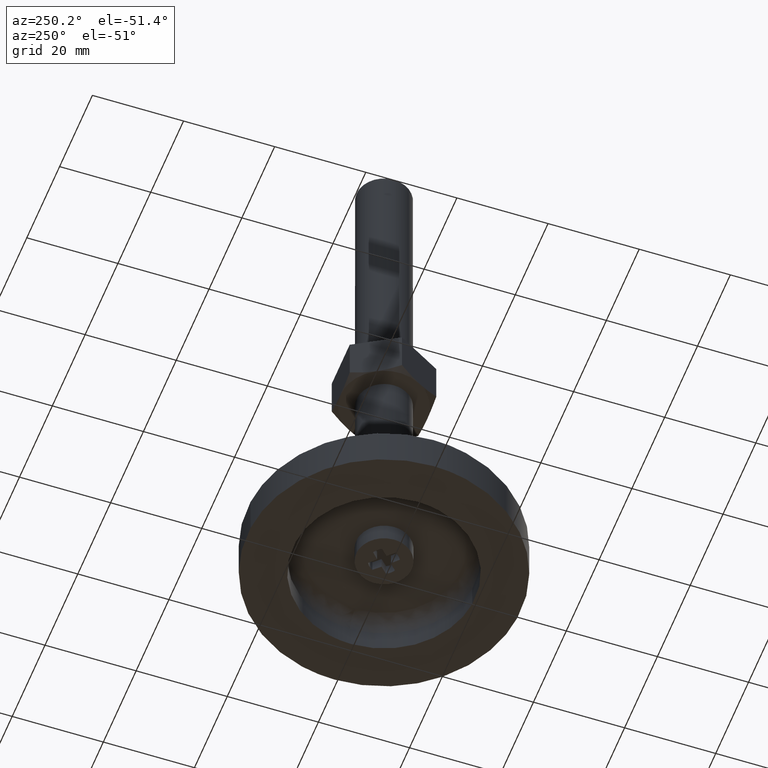
[diagram: clean part render]
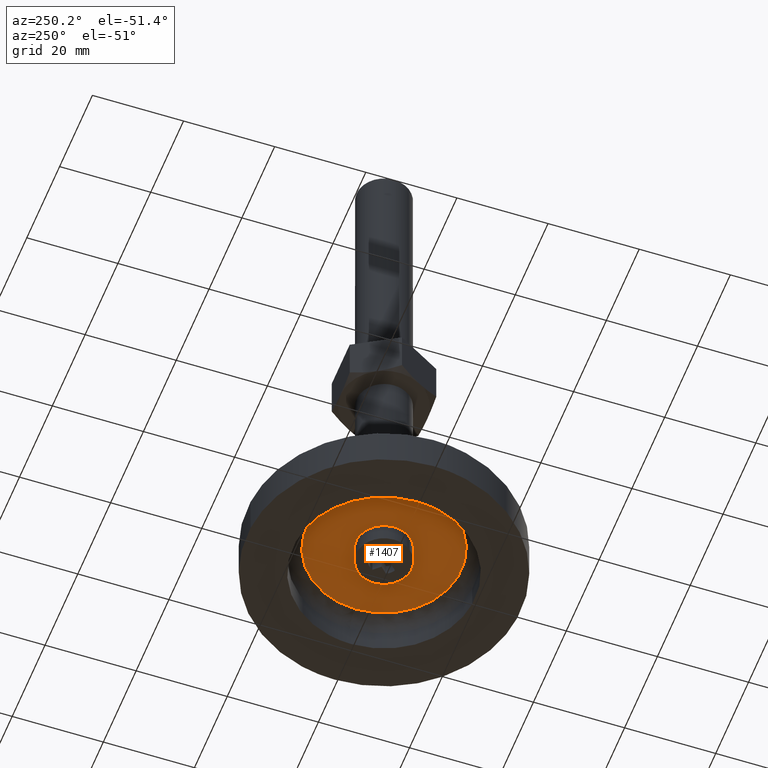
[diagram: same view with one face highlighted and labeled with its STEP entity id]
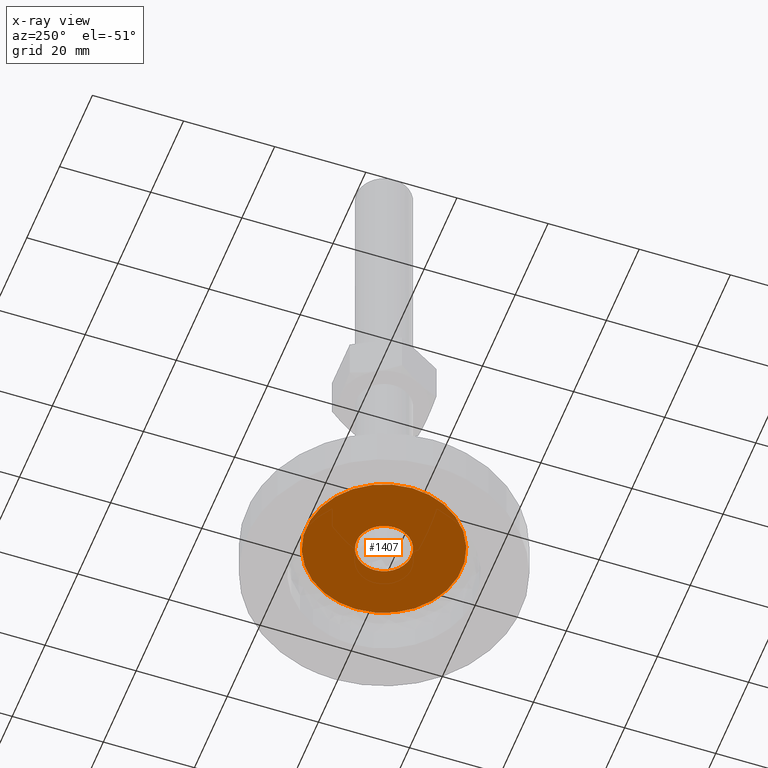
[diagram: x-ray of the same camera — body ghosted, the highlighted face saturated]
A machine part, auxiliary view. The second image highlights one B-rep face of the part: STEP entity #1407.
The next image is the same camera in x-ray: the body ghosted, the highlighted face saturated — about 0% of this face is hidden behind the body in this view.
In plain terms, the highlighted face is a freeform B-spline surface patch.
Its self-contained STEP definition (entity closure, byte-faithful):
#1177=CARTESIAN_POINT('',(16.998657756280039,0.213622678592061,8.0));
#1178=VERTEX_POINT('',#1177);
#1192=CARTESIAN_POINT('',(-17.0,0.0,8.0));
#1193=VERTEX_POINT('',#1192);
#1194=CARTESIAN_POINT('',(-17.0,0.0,8.0));
#1195=CARTESIAN_POINT('',(-17.000105604672711,1.038938880135991,8.000000000000009));
#1196=CARTESIAN_POINT('',(-16.828025025385649,2.908967571575650,7.999999999999919));
#1197=CARTESIAN_POINT('',(-16.210931219974182,5.260018905645230,8.000000000000082));
#1198=CARTESIAN_POINT('',(-15.377275774536949,7.353887868896937,7.999999999999988));
#1199=CARTESIAN_POINT('',(-14.353755285425850,9.208934029262272,7.999999999999948));
#1200=CARTESIAN_POINT('',(-12.796230802875881,11.293580345176570,8.000000000000092));
#1201=CARTESIAN_POINT('',(-11.059292150451460,12.999216577709410,7.999999999999933));
#1202=CARTESIAN_POINT('',(-8.890403058736240,14.559163793837429,8.000000000000046));
#1203=CARTESIAN_POINT('',(-6.609464182957949,15.746463777943321,8.000000000000016));
#1204=CARTESIAN_POINT('',(-4.197493562023425,16.532086340391029,8.000000000000140));
#1205=CARTESIAN_POINT('',(-1.942719425949241,16.929159089066950,7.999999999999769));
#1206=CARTESIAN_POINT('',(0.586208772718293,17.069043883565289,8.000000000000226));
#1207=CARTESIAN_POINT('',(3.112558321656771,16.790388543121789,7.999999999999975));
#1208=CARTESIAN_POINT('',(5.886155361099678,16.017409839924088,7.999999999999903));
#1209=CARTESIAN_POINT('',(7.853591696284147,15.135262488287641,8.000000000000226));
#1210=CARTESIAN_POINT('',(9.918206481521120,13.861111110866331,7.999999999999700));
#1211=CARTESIAN_POINT('',(11.708572758550950,12.427739223383330,8.000000000000183));
#1212=CARTESIAN_POINT('',(13.360222904931449,10.595758974578070,8.000000000000044));
#1213=CARTESIAN_POINT('',(14.807912868469600,8.476386480140745,7.999999999999454));
#1214=CARTESIAN_POINT('',(15.887658645071280,6.255848329929207,8.000000000001419));
#1215=CARTESIAN_POINT('',(16.753102280402899,3.362126566318347,7.999999999997302));
#1216=CARTESIAN_POINT('',(16.984065205234391,1.391004950765484,8.000000000002761));
#1217=CARTESIAN_POINT('',(16.998657756280039,0.213622678592061,8.0));
#1218=B_SPLINE_CURVE_WITH_KNOTS('',3,(#1194,#1195,#1196,#1197,#1198,#1199,#1200,#1201,#1202,#1203,#1204,#1205,#1206,#1207,#1208,#1209,#1210,#1211,#1212,#1213,#1214,#1215,#1216,#1217),.UNSPECIFIED.,.F.,.U.,(4,1,1,1,1,1,1,1,1,1,1,1,1,1,1,1,1,1,1,1,1,4),(0.000000232275013,3.116805700107406,5.610197208325843,7.272512623746181,9.869882290466464,11.947761957658591,15.064589535736870,17.142474158140221,19.947597249655651,22.752768426309579,24.726694496001009,26.804477417362200,30.336870517336411,32.310857669665133,35.427691956956117,36.778314236782649,39.583464325544291,42.284717784370919,44.154816660742092,47.271646587965918,49.661159075049497,53.193529592743893),.UNSPECIFIED.);
#1219=EDGE_CURVE('',#1193,#1178,#1218,.T.);
#1221=CARTESIAN_POINT('',(-16.998657756280039,-0.213622678592057,8.0));
#1222=VERTEX_POINT('',#1221);
#1223=CARTESIAN_POINT('',(-16.998657756280039,-0.213622678592056,8.0));
#1224=CARTESIAN_POINT('',(-17.000000002410811,-0.106815556149688,8.0));
#1225=CARTESIAN_POINT('',(-17.0,0.0,8.0));
#1233=(BOUNDED_CURVE()B_SPLINE_CURVE(2,(#1223,#1224,#1225),.UNSPECIFIED.,.F.,.U.)B_SPLINE_CURVE_WITH_KNOTS((3,3),(0.997784295916405,1.0),.UNSPECIFIED.)CURVE()GEOMETRIC_REPRESENTATION_ITEM()RATIONAL_B_SPLINE_CURVE((0.994854295631762,0.997404141196072,1.0))REPRESENTATION_ITEM(''));
#1234=EDGE_CURVE('',#1222,#1193,#1233,.T.);
#1283=CARTESIAN_POINT('',(17.0,0.0,8.0));
#1284=VERTEX_POINT('',#1283);
#1285=CARTESIAN_POINT('',(17.0,0.0,8.0));
#1286=CARTESIAN_POINT('',(17.000139436908452,-1.108192906138005,7.999999999999995));
#1287=CARTESIAN_POINT('',(16.806283737882620,-3.082113008185723,8.000000000000007));
#1288=CARTESIAN_POINT('',(16.106522939235941,-5.591278196743474,8.000000000000007));
#1289=CARTESIAN_POINT('',(15.126395373659850,-7.888138709253417,7.999999999999980));
#1290=CARTESIAN_POINT('',(13.860626282431010,-9.966778980738532,8.000000000000005));
#1291=CARTESIAN_POINT('',(11.991418760882020,-12.159781957063769,8.000000000000036));
#1292=CARTESIAN_POINT('',(9.836189556051210,-13.974881559590820,7.999999999999905));
#1293=CARTESIAN_POINT('',(7.608038621683763,-15.258506107667840,8.000000000000222));
#1294=CARTESIAN_POINT('',(5.524650213408640,-16.118011658156611,7.999999999999830));
#1295=CARTESIAN_POINT('',(3.286619278757819,-16.750014890639829,8.000000000000252));
#1296=CARTESIAN_POINT('',(0.939297754841939,-17.031466534363130,7.999999999999651));
#1297=CARTESIAN_POINT('',(-1.487614867965952,-16.979911831448032,8.000000000000224));
#1298=CARTESIAN_POINT('',(-3.754837588813800,-16.645408954586401,7.999999999999942));
#1299=CARTESIAN_POINT('',(-6.379242660341415,-15.844487495338649,7.999999999999692));
#1300=CARTESIAN_POINT('',(-8.555871013651283,-14.754368438731730,8.000000000000679));
#1301=CARTESIAN_POINT('',(-10.699211137213670,-13.282405341217560,7.999999999999417));
#1302=CARTESIAN_POINT('',(-12.395246435862891,-11.735897478161700,8.000000000000332));
#1303=CARTESIAN_POINT('',(-14.240105055888661,-9.434220375885243,7.999999999999798));
#1304=CARTESIAN_POINT('',(-15.594014524220780,-6.999980612262529,8.000000000000503));
#1305=CARTESIAN_POINT('',(-16.688278587353029,-3.776856943495612,7.999999999998816));
#1306=CARTESIAN_POINT('',(-16.981983246235721,-1.564155911211339,8.000000000001952));
#1307=CARTESIAN_POINT('',(-16.998657756280039,-0.213622678592057,8.0));
#1308=B_SPLINE_CURVE_WITH_KNOTS('',3,(#1285,#1286,#1287,#1288,#1289,#1290,#1291,#1292,#1293,#1294,#1295,#1296,#1297,#1298,#1299,#1300,#1301,#1302,#1303,#1304,#1305,#1306,#1307),.UNSPECIFIED.,.F.,.U.,(4,1,1,1,1,1,1,1,1,1,1,1,1,1,1,1,1,1,1,1,4),(0.000000232260433,3.324560314812274,5.921914546155591,7.792006181880737,10.804929750579440,13.194491025955870,16.415208231103389,19.220336471628212,20.882631315009760,23.168292284748919,26.181244907533198,27.947305495157138,30.440824413000609,33.038117698147673,36.154960739121947,37.713364142081609,40.830192462621227,43.011980459283564,46.544387155995807,49.141698472185539,53.193529592743857),.UNSPECIFIED.);
#1309=EDGE_CURVE('',#1284,#1222,#1308,.T.);
#1311=CARTESIAN_POINT('',(16.998657756280039,0.213622678592061,8.0));
#1312=CARTESIAN_POINT('',(17.000000002410811,0.106815556149690,8.0));
#1313=CARTESIAN_POINT('',(17.0,0.0,8.0));
#1321=(BOUNDED_CURVE()B_SPLINE_CURVE(2,(#1311,#1312,#1313),.UNSPECIFIED.,.F.,.U.)B_SPLINE_CURVE_WITH_KNOTS((3,3),(0.497784295916405,0.500000000000000),.UNSPECIFIED.)CURVE()GEOMETRIC_REPRESENTATION_ITEM()RATIONAL_B_SPLINE_CURVE((0.994854295631762,0.997404141196072,1.0))REPRESENTATION_ITEM(''));
#1322=EDGE_CURVE('',#1178,#1284,#1321,.T.);
#1330=CARTESIAN_POINT('',(18.698299934101399,-18.697931335615159,8.0));
#1331=CARTESIAN_POINT('',(-18.698300846052469,-18.697931335615159,8.0));
#1332=CARTESIAN_POINT('',(18.698299934101399,18.697932247548248,8.0));
#1333=CARTESIAN_POINT('',(-18.698300846052469,18.697932247548248,8.0));
#1334=B_SPLINE_SURFACE_WITH_KNOTS('',1,1,((#1330,#1332),(#1331,#1333)),.UNSPECIFIED.,.F.,.F.,.U.,(2,2),(2,2),(0.0,37.396600780153868),(0.0,37.395863583163397),.UNSPECIFIED.);
#1335=ORIENTED_EDGE('',*,*,#1219,.T.);
#1336=ORIENTED_EDGE('',*,*,#1322,.T.);
#1337=ORIENTED_EDGE('',*,*,#1309,.T.);
#1338=ORIENTED_EDGE('',*,*,#1234,.T.);
#1339=EDGE_LOOP('',(#1335,#1336,#1337,#1338));
#1340=FACE_OUTER_BOUND('',#1339,.T.);
#1341=CARTESIAN_POINT('',(6.0,0.0,8.0));
#1342=VERTEX_POINT('',#1341);
#1343=CARTESIAN_POINT('',(0.366291237335023,-5.988808790523502,8.0));
#1344=VERTEX_POINT('',#1343);
#1345=CARTESIAN_POINT('',(6.0,0.0,8.0));
#1346=CARTESIAN_POINT('',(6.0,-5.644236401315308,8.0));
#1347=CARTESIAN_POINT('',(0.366291237335024,-5.988808790523503,8.0));
#1355=(BOUNDED_CURVE()B_SPLINE_CURVE(2,(#1345,#1346,#1347),.UNSPECIFIED.,.F.,.U.)B_SPLINE_CURVE_WITH_KNOTS((3,3),(0.500000000000000,0.739332962238341),.UNSPECIFIED.)CURVE()GEOMETRIC_REPRESENTATION_ITEM()RATIONAL_B_SPLINE_CURVE((1.0,0.719603993287415,0.976072041665429))REPRESENTATION_ITEM(''));
#1356=EDGE_CURVE('',#1342,#1344,#1355,.T.);
#1357=ORIENTED_EDGE('',*,*,#1356,.F.);
#1358=CARTESIAN_POINT('',(-0.366291237335024,5.988808790523502,8.0));
#1359=VERTEX_POINT('',#1358);
#1360=CARTESIAN_POINT('',(-0.366291237335024,5.988808790523503,8.0));
#1361=CARTESIAN_POINT('',(-0.183316579854651,6.0,8.0));
#1362=CARTESIAN_POINT('',(0.0,6.0,8.0));
#1363=CARTESIAN_POINT('',(6.0,6.0,8.0));
#1364=CARTESIAN_POINT('',(6.0,0.0,8.0));
#1372=(BOUNDED_CURVE()B_SPLINE_CURVE(2,(#1360,#1361,#1362,#1363,#1364),.UNSPECIFIED.,.F.,.U.)B_SPLINE_CURVE_WITH_KNOTS((3,2,3),(0.239332962238341,0.250000000000000,0.500000000000000),.UNSPECIFIED.)CURVE()GEOMETRIC_REPRESENTATION_ITEM()RATIONAL_B_SPLINE_CURVE((0.976072041665429,0.987502787899133,1.0,0.707106781186548,1.0))REPRESENTATION_ITEM(''));
#1373=EDGE_CURVE('',#1359,#1342,#1372,.T.);
#1374=ORIENTED_EDGE('',*,*,#1373,.F.);
#1375=CARTESIAN_POINT('',(-6.0,0.0,8.0));
#1376=VERTEX_POINT('',#1375);
#1377=CARTESIAN_POINT('',(-6.0,0.0,8.0));
#1378=CARTESIAN_POINT('',(-6.0,5.644236401315308,8.0));
#1379=CARTESIAN_POINT('',(-0.366291237335024,5.988808790523503,8.0));
#1387=(BOUNDED_CURVE()B_SPLINE_CURVE(2,(#1377,#1378,#1379),.UNSPECIFIED.,.F.,.U.)B_SPLINE_CURVE_WITH_KNOTS((3,3),(0.0,0.239332962238341),.UNSPECIFIED.)CURVE()GEOMETRIC_REPRESENTATION_ITEM()RATIONAL_B_SPLINE_CURVE((1.0,0.719603993287415,0.976072041665429))REPRESENTATION_ITEM(''));
#1388=EDGE_CURVE('',#1376,#1359,#1387,.T.);
#1389=ORIENTED_EDGE('',*,*,#1388,.F.);
#1390=CARTESIAN_POINT('',(0.366291237335024,-5.988808790523503,8.0));
#1391=CARTESIAN_POINT('',(0.183316579854651,-6.0,8.0));
#1392=CARTESIAN_POINT('',(0.0,-6.0,8.0));
#1393=CARTESIAN_POINT('',(-6.0,-6.0,8.0));
#1394=CARTESIAN_POINT('',(-6.0,0.0,8.0));
#1402=(BOUNDED_CURVE()B_SPLINE_CURVE(2,(#1390,#1391,#1392,#1393,#1394),.UNSPECIFIED.,.F.,.U.)B_SPLINE_CURVE_WITH_KNOTS((3,2,3),(0.739332962238341,0.750000000000000,1.0),.UNSPECIFIED.)CURVE()GEOMETRIC_REPRESENTATION_ITEM()RATIONAL_B_SPLINE_CURVE((0.976072041665429,0.987502787899133,1.0,0.707106781186548,1.0))REPRESENTATION_ITEM(''));
#1403=EDGE_CURVE('',#1344,#1376,#1402,.T.);
#1404=ORIENTED_EDGE('',*,*,#1403,.F.);
#1405=EDGE_LOOP('',(#1357,#1374,#1389,#1404));
#1406=FACE_BOUND('',#1405,.T.);
#1407=ADVANCED_FACE('',(#1340,#1406),#1334,.T.);